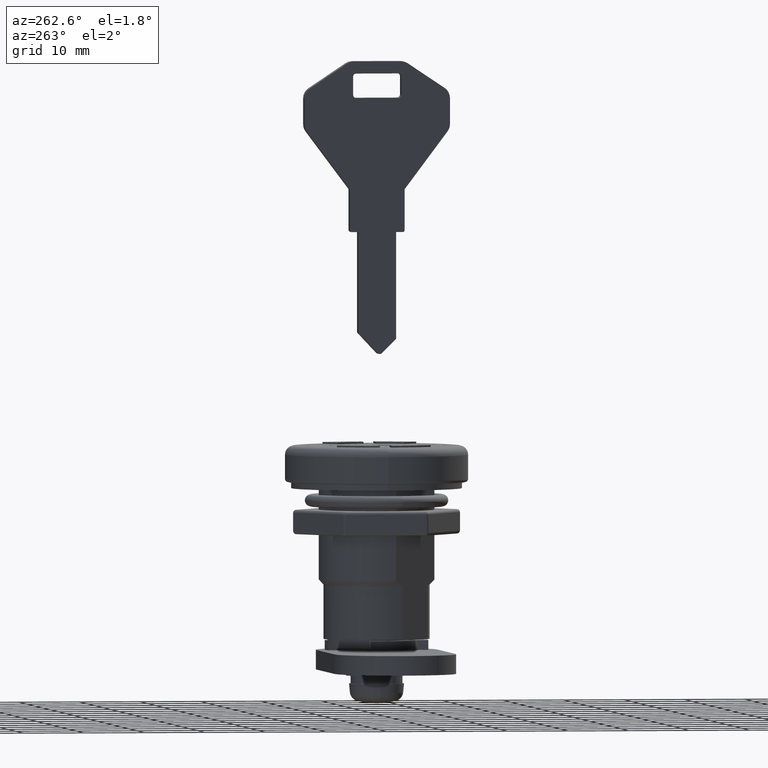
[diagram: clean part render]
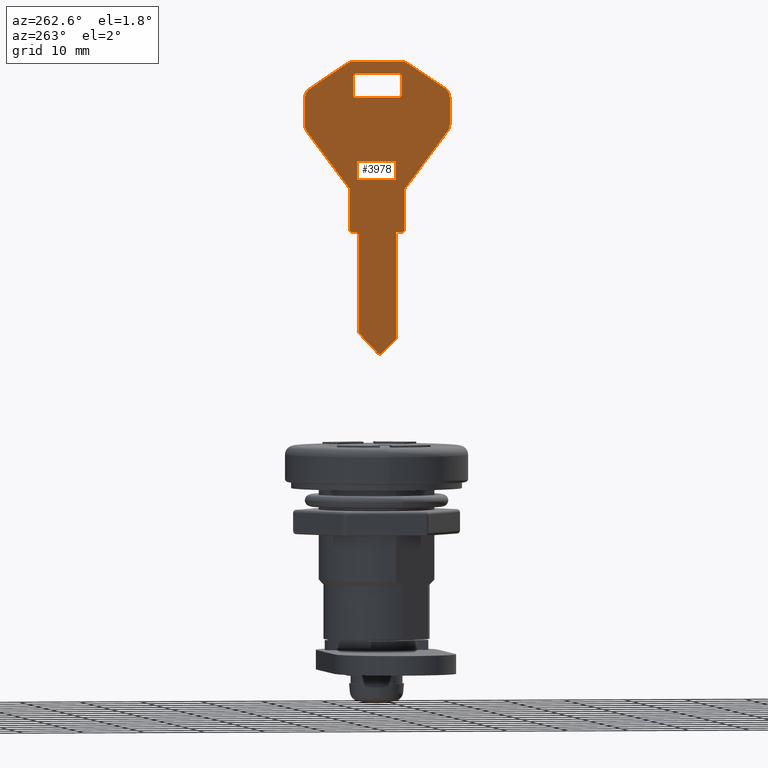
[diagram: same view with one face highlighted and labeled with its STEP entity id]
A machine part, auxiliary view. The second image highlights one B-rep face of the part: STEP entity #3978.
In plain terms, the highlighted planar face has unit normal (1, 0, 0).
Its self-contained STEP definition (entity closure, byte-faithful):
#83 = DIRECTION ( 'NONE',  ( 0.0000000000000000000, 0.7060366494192134000, -0.7081752958674079100 ) ) ;
#85 = VERTEX_POINT ( 'NONE', #5039 ) ;
#97 = DIRECTION ( 'NONE',  ( 0.0000000000000000000, 0.0000000000000000000, -1.000000000000000000 ) ) ;
#145 = DIRECTION ( 'NONE',  ( 0.0000000000000000000, 0.0000000000000000000, -1.000000000000000000 ) ) ;
#155 = EDGE_CURVE ( 'NONE', #158, #5475, #5299, .T. ) ;
#158 = VERTEX_POINT ( 'NONE', #8185 ) ;
#163 = ORIENTED_EDGE ( 'NONE', *, *, #3903, .T. ) ;
#185 = CARTESIAN_POINT ( 'NONE',  ( -1.000000000000000000, -3.099999999999644800, -28.00000000000002500 ) ) ;
#186 = CARTESIAN_POINT ( 'NONE',  ( -1.000000000000000000, 4.200000000000254200, -28.00000000000002500 ) ) ;
#210 = ORIENTED_EDGE ( 'NONE', *, *, #5154, .T. ) ;
#228 = LINE ( 'NONE', #5240, #6865 ) ;
#290 = DIRECTION ( 'NONE',  ( 0.0000000000000000000, 0.0000000000000000000, -1.000000000000000000 ) ) ;
#293 = LINE ( 'NONE', #3319, #1793 ) ;
#298 = EDGE_CURVE ( 'NONE', #4399, #5488, #5317, .T. ) ;
#312 = LINE ( 'NONE', #7553, #6947 ) ;
#322 = CARTESIAN_POINT ( 'NONE',  ( -1.000000000000000000, 3.500000000000002200, -5.999999999999999100 ) ) ;
#375 = VECTOR ( 'NONE', #1374, 1000.000000000000000 ) ;
#438 = EDGE_CURVE ( 'NONE', #1763, #7768, #6211, .T. ) ;
#450 = ORIENTED_EDGE ( 'NONE', *, *, #611, .T. ) ;
#471 = CARTESIAN_POINT ( 'NONE',  ( -1.000000000000000000, 11.10940039245052600, -4.406266928300279800 ) ) ;
#520 = CARTESIAN_POINT ( 'NONE',  ( -1.000000000000000000, 11.60000000000008700, -11.53333333333325200 ) ) ;
#522 = FACE_BOUND ( 'NONE', #8177, .T. ) ;
#531 = CIRCLE ( 'NONE', #4855, 0.5000000000000000000 ) ;
#611 = EDGE_CURVE ( 'NONE', #1448, #7986, #5020, .T. ) ;
#643 = AXIS2_PLACEMENT_3D ( 'NONE', #6757, #2901, #7402 ) ;
#662 = CARTESIAN_POINT ( 'NONE',  ( -1.000000000000000000, -4.499999999999684700, -27.70000000000002400 ) ) ;
#671 = ORIENTED_EDGE ( 'NONE', *, *, #6315, .T. ) ;
#674 = LINE ( 'NONE', #5752, #4501 ) ;
#697 = CARTESIAN_POINT ( 'NONE',  ( -1.000000000000000000, -4.500000000000128800, 0.0000000000000000000 ) ) ;
#722 = VERTEX_POINT ( 'NONE', #7779 ) ;
#727 = LINE ( 'NONE', #4461, #5848 ) ;
#751 = CARTESIAN_POINT ( 'NONE',  ( -1.000000000000000000, -0.4000000000047719800, -47.49999999999990800 ) ) ;
#758 = VERTEX_POINT ( 'NONE', #1794 ) ;
#828 = EDGE_CURVE ( 'NONE', #4201, #2764, #8072, .T. ) ;
#852 = CIRCLE ( 'NONE', #1461, 2.000000000000000000 ) ;
#872 = AXIS2_PLACEMENT_3D ( 'NONE', #7948, #4149, #290 ) ;
#893 = CARTESIAN_POINT ( 'NONE',  ( -1.000000000000000000, -3.099999999999644800, -28.00000000000002500 ) ) ;
#919 = CARTESIAN_POINT ( 'NONE',  ( -1.000000000000000000, -3.099999999999644800, -45.49999999999995700 ) ) ;
#948 = EDGE_CURVE ( 'NONE', #6195, #2939, #674, .T. ) ;
#959 = VECTOR ( 'NONE', #3392, 1000.000000000000100 ) ;
#1024 = DIRECTION ( 'NONE',  ( 1.000000000000000000, 0.0000000000000000000, 0.0000000000000000000 ) ) ;
#1043 = AXIS2_PLACEMENT_3D ( 'NONE', #4691, #4812, #5256 ) ;
#1100 = AXIS2_PLACEMENT_3D ( 'NONE', #7813, #4019, #145 ) ;
#1119 = ORIENTED_EDGE ( 'NONE', *, *, #6956, .F. ) ;
#1134 = ORIENTED_EDGE ( 'NONE', *, *, #2234, .T. ) ;
#1208 = CARTESIAN_POINT ( 'NONE',  ( -1.000000000000000000, -3.499999999999997800, -6.000000000000000900 ) ) ;
#1246 = DIRECTION ( 'NONE',  ( 0.0000000000000000000, -0.5999999999999869900, -0.8000000000000098100 ) ) ;
#1256 = DIRECTION ( 'NONE',  ( -0.0000000000000000000, 1.000000000000000000, 2.168404344971008900E-016 ) ) ;
#1369 = AXIS2_PLACEMENT_3D ( 'NONE', #6143, #2293, #6788 ) ;
#1374 = DIRECTION ( 'NONE',  ( 0.0000000000000000000, 2.168404344971008900E-016, -1.000000000000000000 ) ) ;
#1422 = EDGE_CURVE ( 'NONE', #5578, #1945, #7470, .T. ) ;
#1448 = VERTEX_POINT ( 'NONE', #2538 ) ;
#1461 = AXIS2_PLACEMENT_3D ( 'NONE', #7193, #6776, #4075 ) ;
#1507 = AXIS2_PLACEMENT_3D ( 'NONE', #3017, #7504, #3678 ) ;
#1587 = VECTOR ( 'NONE', #1804, 1000.000000000000000 ) ;
#1594 = ORIENTED_EDGE ( 'NONE', *, *, #8012, .T. ) ;
#1646 = VERTEX_POINT ( 'NONE', #4546 ) ;
#1661 = LINE ( 'NONE', #5714, #3154 ) ;
#1670 = VERTEX_POINT ( 'NONE', #3461 ) ;
#1697 = CARTESIAN_POINT ( 'NONE',  ( -1.000000000000000000, 4.500000000000254000, -28.00000000000002500 ) ) ;
#1763 = VERTEX_POINT ( 'NONE', #1976 ) ;
#1793 = VECTOR ( 'NONE', #3982, 1000.000000000000000 ) ;
#1794 = CARTESIAN_POINT ( 'NONE',  ( -1.000000000000000000, -4.199999999999684900, -28.00000000000002500 ) ) ;
#1804 = DIRECTION ( 'NONE',  ( 0.0000000000000000000, 0.0000000000000000000, -1.000000000000000000 ) ) ;
#1816 = PLANE ( 'NONE',  #6666 ) ;
#1837 = LINE ( 'NONE', #4505, #2933 ) ;
#1865 = VECTOR ( 'NONE', #5162, 1000.000000000000000 ) ;
#1916 = CIRCLE ( 'NONE', #643, 1.999999999999999100 ) ;
#1942 = EDGE_CURVE ( 'NONE', #2262, #158, #4786, .T. ) ;
#1945 = VERTEX_POINT ( 'NONE', #6003 ) ;
#1963 = ORIENTED_EDGE ( 'NONE', *, *, #828, .F. ) ;
#1976 = CARTESIAN_POINT ( 'NONE',  ( -1.000000000000000000, -5.003849116986601500, -0.3358994113243197700 ) ) ;
#1988 = AXIS2_PLACEMENT_3D ( 'NONE', #751, #4618, #97 ) ;
#2006 = CARTESIAN_POINT ( 'NONE',  ( -1.000000000000000000, -0.7540876479384616100, -47.85301832470950200 ) ) ;
#2058 = ORIENTED_EDGE ( 'NONE', *, *, #1942, .T. ) ;
#2163 = VECTOR ( 'NONE', #4370, 1000.000000000000100 ) ;
#2214 = VERTEX_POINT ( 'NONE', #186 ) ;
#2223 = EDGE_CURVE ( 'NONE', #4715, #5278, #2733, .T. ) ;
#2230 = EDGE_CURVE ( 'NONE', #1670, #7041, #3147, .T. ) ;
#2234 = EDGE_CURVE ( 'NONE', #5578, #7041, #852, .T. ) ;
#2262 = VERTEX_POINT ( 'NONE', #2267 ) ;
#2267 = CARTESIAN_POINT ( 'NONE',  ( -1.000000000000000000, 3.894448724536137900, 1.618005252259579000E-015 ) ) ;
#2279 = CARTESIAN_POINT ( 'NONE',  ( -1.000000000000000000, -3.894448724536131700, -2.000000000000000000 ) ) ;
#2293 = DIRECTION ( 'NONE',  ( -1.000000000000000000, -0.0000000000000000000, -0.0000000000000000000 ) ) ;
#2406 = ORIENTED_EDGE ( 'NONE', *, *, #3792, .T. ) ;
#2450 = DIRECTION ( 'NONE',  ( 1.000000000000000000, 0.0000000000000000000, 0.0000000000000000000 ) ) ;
#2455 = CARTESIAN_POINT ( 'NONE',  ( -1.000000000000000000, -0.4000000000047719800, -47.49999999999990800 ) ) ;
#2479 = VERTEX_POINT ( 'NONE', #4319 ) ;
#2524 = ORIENTED_EDGE ( 'NONE', *, *, #2223, .T. ) ;
#2538 = CARTESIAN_POINT ( 'NONE',  ( -1.000000000000000000, 4.500000000000254000, -21.00000000000001400 ) ) ;
#2572 = ORIENTED_EDGE ( 'NONE', *, *, #155, .T. ) ;
#2632 = EDGE_CURVE ( 'NONE', #2262, #7768, #1837, .T. ) ;
#2636 = LINE ( 'NONE', #2701, #959 ) ;
#2681 = ORIENTED_EDGE ( 'NONE', *, *, #7484, .T. ) ;
#2701 = CARTESIAN_POINT ( 'NONE',  ( -1.000000000000000000, 3.100000000000213700, -44.50000000000187600 ) ) ;
#2715 = DIRECTION ( 'NONE',  ( 0.0000000000000000000, -1.000000000000000000, 0.0000000000000000000 ) ) ;
#2733 = CIRCLE ( 'NONE', #1043, 0.5000000000000000000 ) ;
#2764 = VERTEX_POINT ( 'NONE', #7819 ) ;
#2783 = DIRECTION ( 'NONE',  ( 0.0000000000000000000, 0.0000000000000000000, -1.000000000000000000 ) ) ;
#2859 = ORIENTED_EDGE ( 'NONE', *, *, #6713, .T. ) ;
#2901 = DIRECTION ( 'NONE',  ( -1.000000000000000000, -0.0000000000000000000, -0.0000000000000000000 ) ) ;
#2916 = DIRECTION ( 'NONE',  ( 0.0000000000000000000, 0.0000000000000000000, -1.000000000000000000 ) ) ;
#2933 = VECTOR ( 'NONE', #5790, 1000.000000000000000 ) ;
#2939 = VERTEX_POINT ( 'NONE', #322 ) ;
#2996 = VECTOR ( 'NONE', #4548, 1000.000000000000000 ) ;
#3017 = CARTESIAN_POINT ( 'NONE',  ( -1.000000000000000000, 10.00000000000006600, -10.33333333333327700 ) ) ;
#3034 = CARTESIAN_POINT ( 'NONE',  ( -1.000000000000000000, 12.00000000000006600, -10.33333333333327500 ) ) ;
#3098 = VECTOR ( 'NONE', #2715, 1000.000000000000000 ) ;
#3101 = ORIENTED_EDGE ( 'NONE', *, *, #5951, .T. ) ;
#3147 = LINE ( 'NONE', #4157, #7456 ) ;
#3154 = VECTOR ( 'NONE', #3772, 1000.000000000000000 ) ;
#3160 = ORIENTED_EDGE ( 'NONE', *, *, #438, .T. ) ;
#3180 = ORIENTED_EDGE ( 'NONE', *, *, #7643, .T. ) ;
#3181 = DIRECTION ( 'NONE',  ( 0.0000000000000000000, 0.0000000000000000000, -1.000000000000000000 ) ) ;
#3317 = ORIENTED_EDGE ( 'NONE', *, *, #3571, .T. ) ;
#3319 = CARTESIAN_POINT ( 'NONE',  ( -1.000000000000000000, 4.000000000000000900, -1.999999999999999600 ) ) ;
#3367 = VECTOR ( 'NONE', #3181, 1000.000000000000000 ) ;
#3392 = DIRECTION ( 'NONE',  ( 0.0000000000000000000, -0.6841889379935229800, -0.7293048039930185600 ) ) ;
#3461 = CARTESIAN_POINT ( 'NONE',  ( -1.000000000000000000, -11.99999999999994100, -6.070367516975931500 ) ) ;
#3462 = EDGE_CURVE ( 'NONE', #8132, #2479, #531, .T. ) ;
#3467 = LINE ( 'NONE', #893, #5395 ) ;
#3486 = CARTESIAN_POINT ( 'NONE',  ( -1.000000000000000000, -11.99999999999994100, -11.00000000000001100 ) ) ;
#3571 = EDGE_CURVE ( 'NONE', #8069, #1448, #727, .T. ) ;
#3596 = VECTOR ( 'NONE', #2783, 1000.000000000000000 ) ;
#3613 = CARTESIAN_POINT ( 'NONE',  ( -1.000000000000000000, 3.100000000000213700, -28.00000000000002500 ) ) ;
#3659 = DIRECTION ( 'NONE',  ( -1.000000000000000000, -0.0000000000000000000, -0.0000000000000000000 ) ) ;
#3678 = DIRECTION ( 'NONE',  ( 0.0000000000000000000, -2.602085213965210600E-015, -1.000000000000000000 ) ) ;
#3709 = ORIENTED_EDGE ( 'NONE', *, *, #5199, .T. ) ;
#3772 = DIRECTION ( 'NONE',  ( 0.0000000000000000000, -1.000000000000000000, -1.084202172485504400E-016 ) ) ;
#3777 = CARTESIAN_POINT ( 'NONE',  ( -1.000000000000000000, -3.499999999999998700, -2.000000000000000400 ) ) ;
#3792 = EDGE_CURVE ( 'NONE', #5475, #4399, #1916, .T. ) ;
#3903 = EDGE_CURVE ( 'NONE', #5488, #8069, #7717, .T. ) ;
#3959 = EDGE_CURVE ( 'NONE', #1945, #6775, #312, .T. ) ;
#3978 = ADVANCED_FACE ( 'NONE', ( #522, #5250 ), #1816, .F. ) ;
#3982 = DIRECTION ( 'NONE',  ( -0.0000000000000000000, -4.336808689942017700E-016, 1.000000000000000000 ) ) ;
#4019 = DIRECTION ( 'NONE',  ( -1.000000000000000000, -0.0000000000000000000, -0.0000000000000000000 ) ) ;
#4075 = DIRECTION ( 'NONE',  ( 0.0000000000000000000, 8.673617379884035500E-016, -1.000000000000000000 ) ) ;
#4149 = DIRECTION ( 'NONE',  ( 1.000000000000000000, 0.0000000000000000000, 0.0000000000000000000 ) ) ;
#4157 = CARTESIAN_POINT ( 'NONE',  ( -1.000000000000000000, -11.99999999999994100, -4.999999999999948500 ) ) ;
#4201 = VERTEX_POINT ( 'NONE', #2006 ) ;
#4249 = DIRECTION ( 'NONE',  ( 0.0000000000000000000, 0.0000000000000000000, -1.000000000000000000 ) ) ;
#4264 = ORIENTED_EDGE ( 'NONE', *, *, #3462, .T. ) ;
#4315 = LINE ( 'NONE', #1697, #6021 ) ;
#4319 = CARTESIAN_POINT ( 'NONE',  ( -1.000000000000000000, -3.999999999999998200, -2.500000000000000400 ) ) ;
#4370 = DIRECTION ( 'NONE',  ( 0.0000000000000000000, 0.6000000000000096400, -0.7999999999999928300 ) ) ;
#4399 = VERTEX_POINT ( 'NONE', #5693 ) ;
#4461 = CARTESIAN_POINT ( 'NONE',  ( -1.000000000000000000, 12.00000000000006600, -10.99999999999992500 ) ) ;
#4472 = AXIS2_PLACEMENT_3D ( 'NONE', #2279, #6769, #2916 ) ;
#4501 = VECTOR ( 'NONE', #1256, 1000.000000000000000 ) ;
#4505 = CARTESIAN_POINT ( 'NONE',  ( -1.000000000000000000, 4.500000000000128800, 1.734723475976807100E-015 ) ) ;
#4521 = CARTESIAN_POINT ( 'NONE',  ( -1.000000000000000000, 4.500000000000128800, 1.734723475976807100E-015 ) ) ;
#4546 = CARTESIAN_POINT ( 'NONE',  ( -1.000000000000000000, -3.999999999999997300, -5.500000000000001800 ) ) ;
#4548 = DIRECTION ( 'NONE',  ( 0.0000000000000000000, -0.8320502943378399500, -0.5547001962252347000 ) ) ;
#4592 = ORIENTED_EDGE ( 'NONE', *, *, #298, .T. ) ;
#4618 = DIRECTION ( 'NONE',  ( 1.000000000000000000, 0.0000000000000000000, 0.0000000000000000000 ) ) ;
#4691 = CARTESIAN_POINT ( 'NONE',  ( -1.000000000000000000, 3.500000000000001300, -2.499999999999999600 ) ) ;
#4715 = VERTEX_POINT ( 'NONE', #5416 ) ;
#4724 = EDGE_CURVE ( 'NONE', #1646, #6195, #6034, .T. ) ;
#4741 = DIRECTION ( 'NONE',  ( 0.0000000000000000000, 0.0000000000000000000, -1.000000000000000000 ) ) ;
#4786 = CIRCLE ( 'NONE', #7366, 2.000000000000000000 ) ;
#4812 = DIRECTION ( 'NONE',  ( 1.000000000000000000, 0.0000000000000000000, 0.0000000000000000000 ) ) ;
#4855 = AXIS2_PLACEMENT_3D ( 'NONE', #6310, #2450, #6955 ) ;
#4877 = CARTESIAN_POINT ( 'NONE',  ( -1.000000000000000000, 3.500000000000002200, -5.500000000000000000 ) ) ;
#4939 = LINE ( 'NONE', #697, #2996 ) ;
#5020 = LINE ( 'NONE', #6295, #1587 ) ;
#5038 = LINE ( 'NONE', #185, #3098 ) ;
#5039 = CARTESIAN_POINT ( 'NONE',  ( -1.000000000000000000, 4.000000000000002700, -5.500000000000000000 ) ) ;
#5044 = DIRECTION ( 'NONE',  ( 0.0000000000000000000, 0.0000000000000000000, -1.000000000000000000 ) ) ;
#5088 = EDGE_CURVE ( 'NONE', #1763, #722, #4939, .T. ) ;
#5143 = EDGE_CURVE ( 'NONE', #85, #4715, #293, .T. ) ;
#5154 = EDGE_CURVE ( 'NONE', #758, #6775, #5431, .T. ) ;
#5162 = DIRECTION ( 'NONE',  ( 0.0000000000000000000, 0.8320502943378427200, -0.5547001962252304800 ) ) ;
#5180 = VERTEX_POINT ( 'NONE', #5312 ) ;
#5199 = EDGE_CURVE ( 'NONE', #6602, #758, #5038, .T. ) ;
#5240 = CARTESIAN_POINT ( 'NONE',  ( -1.000000000000000000, -3.099999999999644800, -45.49999999999995700 ) ) ;
#5250 = FACE_OUTER_BOUND ( 'NONE', #6959, .T. ) ;
#5256 = DIRECTION ( 'NONE',  ( 0.0000000000000000000, 0.0000000000000000000, -1.000000000000000000 ) ) ;
#5278 = VERTEX_POINT ( 'NONE', #7333 ) ;
#5299 = LINE ( 'NONE', #4521, #1865 ) ;
#5312 = CARTESIAN_POINT ( 'NONE',  ( -1.000000000000000000, 3.100000000000213700, -44.50000000000187600 ) ) ;
#5317 = LINE ( 'NONE', #5357, #3596 ) ;
#5357 = CARTESIAN_POINT ( 'NONE',  ( -1.000000000000000000, 12.00000000000006600, -4.999999999999975100 ) ) ;
#5395 = VECTOR ( 'NONE', #4741, 1000.000000000000000 ) ;
#5416 = CARTESIAN_POINT ( 'NONE',  ( -1.000000000000000000, 4.000000000000000900, -2.499999999999999600 ) ) ;
#5431 = CIRCLE ( 'NONE', #1100, 0.3000000000000016500 ) ;
#5451 = ORIENTED_EDGE ( 'NONE', *, *, #3959, .F. ) ;
#5475 = VERTEX_POINT ( 'NONE', #471 ) ;
#5488 = VERTEX_POINT ( 'NONE', #3034 ) ;
#5529 = DIRECTION ( 'NONE',  ( 0.0000000000000000000, 0.0000000000000000000, -1.000000000000000000 ) ) ;
#5578 = VERTEX_POINT ( 'NONE', #5720 ) ;
#5672 = CIRCLE ( 'NONE', #6813, 0.3000000000000016500 ) ;
#5675 = ORIENTED_EDGE ( 'NONE', *, *, #2230, .F. ) ;
#5693 = CARTESIAN_POINT ( 'NONE',  ( -1.000000000000000000, 12.00000000000006600, -6.070367516975964300 ) ) ;
#5714 = CARTESIAN_POINT ( 'NONE',  ( -1.000000000000000000, 4.000000000000000900, -1.999999999999999600 ) ) ;
#5720 = CARTESIAN_POINT ( 'NONE',  ( -1.000000000000000000, -11.59999999999992900, -11.53333333333334900 ) ) ;
#5752 = CARTESIAN_POINT ( 'NONE',  ( -1.000000000000000000, 4.000000000000002700, -5.999999999999999100 ) ) ;
#5790 = DIRECTION ( 'NONE',  ( 0.0000000000000000000, -1.000000000000000000, -1.927470528863063800E-016 ) ) ;
#5848 = VECTOR ( 'NONE', #1246, 999.9999999999998900 ) ;
#5867 = CARTESIAN_POINT ( 'NONE',  ( -1.000000000000000000, -3.999999999999998200, -2.000000000000000400 ) ) ;
#5936 = ORIENTED_EDGE ( 'NONE', *, *, #948, .T. ) ;
#5951 = EDGE_CURVE ( 'NONE', #2939, #85, #6213, .T. ) ;
#5970 = CARTESIAN_POINT ( 'NONE',  ( -1.000000000000000000, -3.894448724536132600, 1.167182237172291200E-016 ) ) ;
#5996 = EDGE_CURVE ( 'NONE', #2214, #6514, #4315, .T. ) ;
#6003 = CARTESIAN_POINT ( 'NONE',  ( -1.000000000000000000, -4.499999999999684700, -21.00000000000010300 ) ) ;
#6005 = ORIENTED_EDGE ( 'NONE', *, *, #1422, .F. ) ;
#6021 = VECTOR ( 'NONE', #8026, 1000.000000000000000 ) ;
#6034 = CIRCLE ( 'NONE', #872, 0.5000000000000004400 ) ;
#6131 = CARTESIAN_POINT ( 'NONE',  ( -1.000000000000000000, -11.99999999999994100, -10.33333333333332900 ) ) ;
#6143 = CARTESIAN_POINT ( 'NONE',  ( -1.000000000000000000, -9.999999999999941400, -6.070367516975931500 ) ) ;
#6195 = VERTEX_POINT ( 'NONE', #1208 ) ;
#6211 = CIRCLE ( 'NONE', #4472, 2.000000000000000000 ) ;
#6213 = CIRCLE ( 'NONE', #6629, 0.5000000000000004400 ) ;
#6295 = CARTESIAN_POINT ( 'NONE',  ( -1.000000000000000000, 4.500000000000254000, -21.00000000000001400 ) ) ;
#6310 = CARTESIAN_POINT ( 'NONE',  ( -1.000000000000000000, -3.499999999999998200, -2.500000000000000400 ) ) ;
#6315 = EDGE_CURVE ( 'NONE', #2479, #1646, #7001, .T. ) ;
#6364 = CIRCLE ( 'NONE', #1369, 2.000000000000000900 ) ;
#6514 = VERTEX_POINT ( 'NONE', #3613 ) ;
#6541 = ORIENTED_EDGE ( 'NONE', *, *, #5143, .T. ) ;
#6602 = VERTEX_POINT ( 'NONE', #6932 ) ;
#6629 = AXIS2_PLACEMENT_3D ( 'NONE', #4877, #1024, #5529 ) ;
#6666 = AXIS2_PLACEMENT_3D ( 'NONE', #2455, #6935, #7582 ) ;
#6699 = CARTESIAN_POINT ( 'NONE',  ( -1.000000000000000000, 3.894448724536138300, -1.999999999999998200 ) ) ;
#6713 = EDGE_CURVE ( 'NONE', #6514, #5180, #6786, .T. ) ;
#6724 = DIRECTION ( 'NONE',  ( 0.0000000000000000000, 0.0000000000000000000, -1.000000000000000000 ) ) ;
#6757 = CARTESIAN_POINT ( 'NONE',  ( -1.000000000000000000, 10.00000000000006600, -6.070367516975964300 ) ) ;
#6769 = DIRECTION ( 'NONE',  ( -1.000000000000000000, -0.0000000000000000000, -0.0000000000000000000 ) ) ;
#6775 = VERTEX_POINT ( 'NONE', #662 ) ;
#6776 = DIRECTION ( 'NONE',  ( -1.000000000000000000, -0.0000000000000000000, -0.0000000000000000000 ) ) ;
#6786 = LINE ( 'NONE', #7028, #3367 ) ;
#6788 = DIRECTION ( 'NONE',  ( 0.0000000000000000000, 0.0000000000000000000, -1.000000000000000000 ) ) ;
#6813 = AXIS2_PLACEMENT_3D ( 'NONE', #7490, #3659, #8119 ) ;
#6865 = VECTOR ( 'NONE', #83, 1000.000000000000000 ) ;
#6932 = CARTESIAN_POINT ( 'NONE',  ( -1.000000000000000000, -3.099999999999644800, -28.00000000000002500 ) ) ;
#6935 = DIRECTION ( 'NONE',  ( 1.000000000000000000, 0.0000000000000000000, 0.0000000000000000000 ) ) ;
#6947 = VECTOR ( 'NONE', #5044, 1000.000000000000000 ) ;
#6955 = DIRECTION ( 'NONE',  ( 0.0000000000000000000, 0.0000000000000000000, -1.000000000000000000 ) ) ;
#6956 = EDGE_CURVE ( 'NONE', #6602, #7829, #3467, .T. ) ;
#6959 = EDGE_LOOP ( 'NONE', ( #450, #1594, #7460, #2859, #2681, #1963, #7874, #1119, #3709, #210, #5451, #6005, #1134, #5675, #3180, #7747, #3160, #8094, #2058, #2572, #2406, #4592, #163, #3317 ) ) ;
#7001 = LINE ( 'NONE', #5867, #375 ) ;
#7028 = CARTESIAN_POINT ( 'NONE',  ( -1.000000000000000000, 3.100000000000213700, -28.00000000000002500 ) ) ;
#7041 = VERTEX_POINT ( 'NONE', #6131 ) ;
#7193 = CARTESIAN_POINT ( 'NONE',  ( -1.000000000000000000, -9.999999999999941400, -10.33333333333332900 ) ) ;
#7219 = EDGE_CURVE ( 'NONE', #5278, #8132, #1661, .T. ) ;
#7273 = DIRECTION ( 'NONE',  ( -1.000000000000000000, -0.0000000000000000000, -0.0000000000000000000 ) ) ;
#7333 = CARTESIAN_POINT ( 'NONE',  ( -1.000000000000000000, 3.500000000000001300, -1.999999999999999600 ) ) ;
#7366 = AXIS2_PLACEMENT_3D ( 'NONE', #6699, #7273, #6724 ) ;
#7401 = ORIENTED_EDGE ( 'NONE', *, *, #7219, .T. ) ;
#7402 = DIRECTION ( 'NONE',  ( 0.0000000000000000000, -1.734723475976807900E-015, -1.000000000000000000 ) ) ;
#7456 = VECTOR ( 'NONE', #4249, 1000.000000000000000 ) ;
#7457 = CARTESIAN_POINT ( 'NONE',  ( -1.000000000000000000, 4.500000000000254000, -27.70000000000002400 ) ) ;
#7460 = ORIENTED_EDGE ( 'NONE', *, *, #5996, .T. ) ;
#7470 = LINE ( 'NONE', #3486, #2163 ) ;
#7484 = EDGE_CURVE ( 'NONE', #5180, #2764, #2636, .T. ) ;
#7490 = CARTESIAN_POINT ( 'NONE',  ( -1.000000000000000000, 4.200000000000254200, -27.70000000000002400 ) ) ;
#7504 = DIRECTION ( 'NONE',  ( -1.000000000000000000, -0.0000000000000000000, -0.0000000000000000000 ) ) ;
#7553 = CARTESIAN_POINT ( 'NONE',  ( -1.000000000000000000, -4.499999999999684700, -21.00000000000010300 ) ) ;
#7582 = DIRECTION ( 'NONE',  ( 0.0000000000000000000, 0.0000000000000000000, -1.000000000000000000 ) ) ;
#7588 = ORIENTED_EDGE ( 'NONE', *, *, #4724, .T. ) ;
#7643 = EDGE_CURVE ( 'NONE', #1670, #722, #6364, .T. ) ;
#7717 = CIRCLE ( 'NONE', #1507, 2.000000000000000000 ) ;
#7747 = ORIENTED_EDGE ( 'NONE', *, *, #5088, .F. ) ;
#7768 = VERTEX_POINT ( 'NONE', #5970 ) ;
#7779 = CARTESIAN_POINT ( 'NONE',  ( -1.000000000000000000, -11.10940039245041100, -4.406266928300251400 ) ) ;
#7813 = CARTESIAN_POINT ( 'NONE',  ( -1.000000000000000000, -4.199999999999684900, -27.70000000000002400 ) ) ;
#7819 = CARTESIAN_POINT ( 'NONE',  ( -1.000000000000000000, -0.03534759800827704000, -47.84209446899665600 ) ) ;
#7829 = VERTEX_POINT ( 'NONE', #919 ) ;
#7874 = ORIENTED_EDGE ( 'NONE', *, *, #8276, .F. ) ;
#7948 = CARTESIAN_POINT ( 'NONE',  ( -1.000000000000000000, -3.499999999999997800, -5.500000000000001800 ) ) ;
#7986 = VERTEX_POINT ( 'NONE', #7457 ) ;
#8012 = EDGE_CURVE ( 'NONE', #7986, #2214, #5672, .T. ) ;
#8026 = DIRECTION ( 'NONE',  ( 0.0000000000000000000, -1.000000000000000000, 0.0000000000000000000 ) ) ;
#8069 = VERTEX_POINT ( 'NONE', #520 ) ;
#8072 = CIRCLE ( 'NONE', #1988, 0.4999999999999796300 ) ;
#8094 = ORIENTED_EDGE ( 'NONE', *, *, #2632, .F. ) ;
#8119 = DIRECTION ( 'NONE',  ( 0.0000000000000000000, 0.0000000000000000000, -1.000000000000000000 ) ) ;
#8132 = VERTEX_POINT ( 'NONE', #3777 ) ;
#8177 = EDGE_LOOP ( 'NONE', ( #671, #7588, #5936, #3101, #6541, #2524, #7401, #4264 ) ) ;
#8185 = CARTESIAN_POINT ( 'NONE',  ( -1.000000000000000000, 5.003849116986598800, -0.3358994113243126700 ) ) ;
#8276 = EDGE_CURVE ( 'NONE', #7829, #4201, #228, .T. ) ;